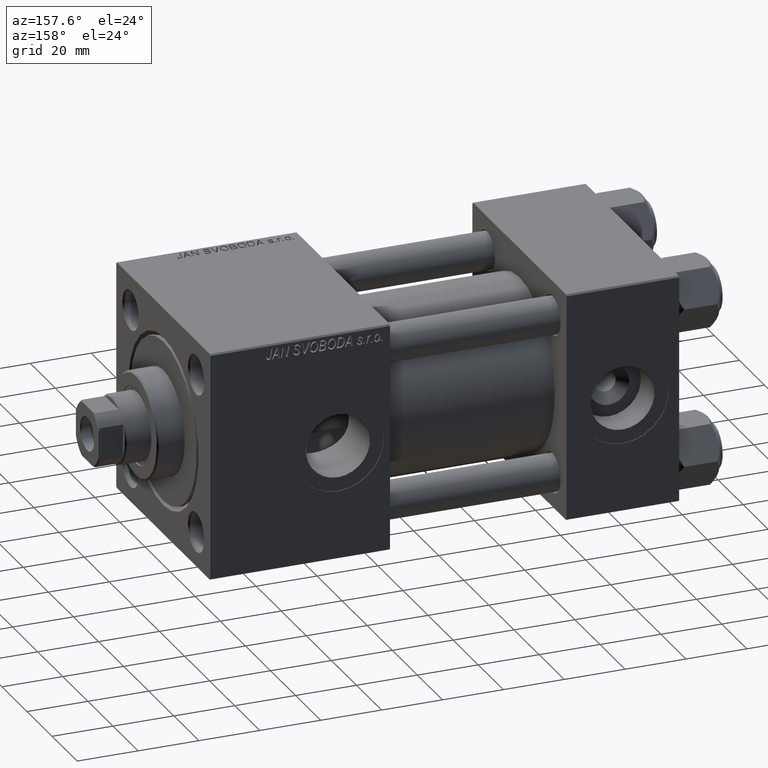
[diagram: clean part render]
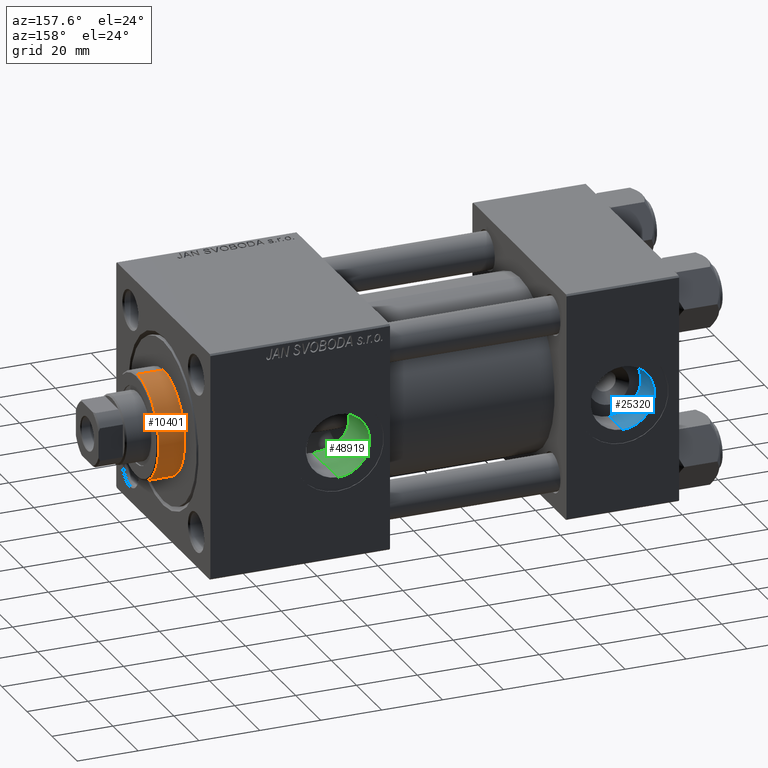
[diagram: same view with three faces highlighted in distinct colors, each labeled with its STEP entity id]
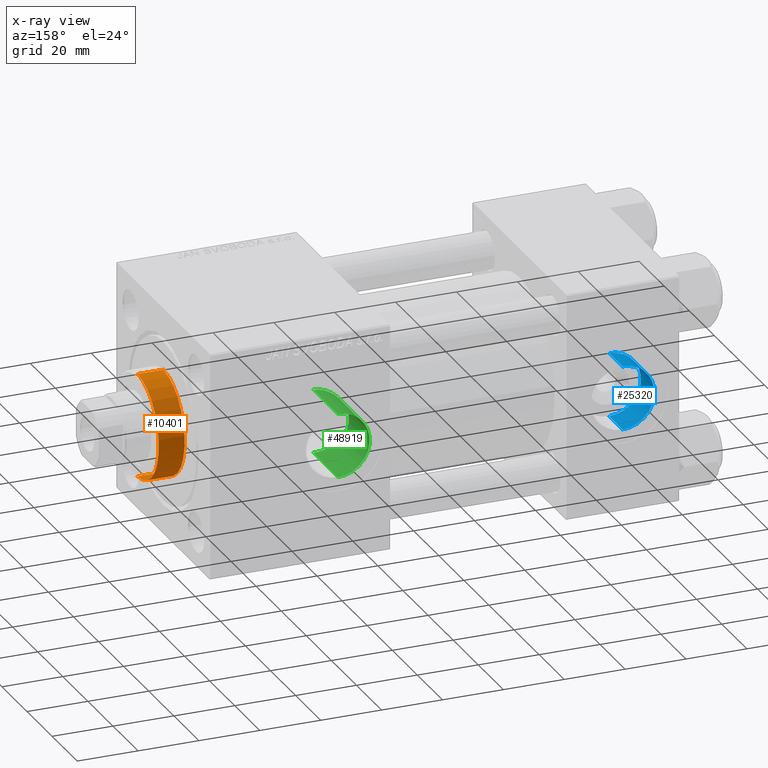
[diagram: x-ray of the same camera — body ghosted, the three highlighted faces saturated]
A machine part, auxiliary view with three faces highlighted in distinct colors.
The next image is the same camera in x-ray (body ghosted, the three faces saturated) — at least one of them is partly hidden behind the body in this view.
Their STEP definitions:

[orange] entity #10401 — the highlighted cylindrical surface (partial cylindrical patch) has radius 17 mm, axis along (-1, -0, 0).
#575 = VERTEX_POINT ( 'NONE', #48527 ) ;
#1609 = LINE ( 'NONE', #20638, #12077 ) ;
#1799 = EDGE_CURVE ( 'NONE', #6918, #575, #19057, .T. ) ;
#1956 = CARTESIAN_POINT ( 'NONE',  ( 0.000000000000000000, 0.000000000000000000, 37.69999999999999574 ) ) ;
#2347 = EDGE_CURVE ( 'NONE', #575, #44585, #41807, .T. ) ;
#4765 = CARTESIAN_POINT ( 'NONE',  ( -17.00000000000000000, 0.000000000000000000, 28.69999999999999929 ) ) ;
#5971 = ORIENTED_EDGE ( 'NONE', *, *, #37103, .F. ) ;
#6918 = VERTEX_POINT ( 'NONE', #20318 ) ;
#7558 = DIRECTION ( 'NONE',  ( -0.000000000000000000, -0.000000000000000000, -1.000000000000000000 ) ) ;
#8359 = DIRECTION ( 'NONE',  ( 0.000000000000000000, 0.000000000000000000, -1.000000000000000000 ) ) ;
#9379 = VECTOR ( 'NONE', #11701, 1000.000000000000000 ) ;
#10401 = ADVANCED_FACE ( 'NONE', ( #20737 ), #21481, .T. ) ;
#11474 = EDGE_LOOP ( 'NONE', ( #42091, #16714, #45737, #5971 ) ) ;
#11701 = DIRECTION ( 'NONE',  ( -0.000000000000000000, -0.000000000000000000, -1.000000000000000000 ) ) ;
#12077 = VECTOR ( 'NONE', #7558, 1000.000000000000000 ) ;
#14221 = AXIS2_PLACEMENT_3D ( 'NONE', #41464, #49322, #14558 ) ;
#14558 = DIRECTION ( 'NONE',  ( 1.000000000000000000, 0.000000000000000000, 0.000000000000000000 ) ) ;
#14946 = CARTESIAN_POINT ( 'NONE',  ( -17.00000000000000000, 0.000000000000000000, 37.19999999999999574 ) ) ;
#16714 = ORIENTED_EDGE ( 'NONE', *, *, #1799, .T. ) ;
#16932 = DIRECTION ( 'NONE',  ( -0.000000000000000000, -0.000000000000000000, -1.000000000000000000 ) ) ;
#19057 = LINE ( 'NONE', #38358, #9379 ) ;
#19240 = AXIS2_PLACEMENT_3D ( 'NONE', #1956, #16932, #32413 ) ;
#20318 = CARTESIAN_POINT ( 'NONE',  ( 17.00000000000000000, 2.081899558550500280E-15, 37.19999999999999574 ) ) ;
#20638 = CARTESIAN_POINT ( 'NONE',  ( -17.00000000000000000, 0.000000000000000000, 37.69999999999999574 ) ) ;
#20737 = FACE_OUTER_BOUND ( 'NONE', #11474, .T. ) ;
#21481 = CYLINDRICAL_SURFACE ( 'NONE', #19240, 17.00000000000000000 ) ;
#22392 = AXIS2_PLACEMENT_3D ( 'NONE', #27145, #8359, #34744 ) ;
#26771 = EDGE_CURVE ( 'NONE', #46773, #6918, #28882, .T. ) ;
#27145 = CARTESIAN_POINT ( 'NONE',  ( 0.000000000000000000, 0.000000000000000000, 37.19999999999999574 ) ) ;
#28882 = CIRCLE ( 'NONE', #22392, 17.00000000000000000 ) ;
#32413 = DIRECTION ( 'NONE',  ( -1.000000000000000000, 0.000000000000000000, 0.000000000000000000 ) ) ;
#34744 = DIRECTION ( 'NONE',  ( 1.000000000000000000, 0.000000000000000000, 0.000000000000000000 ) ) ;
#37103 = EDGE_CURVE ( 'NONE', #46773, #44585, #1609, .T. ) ;
#38358 = CARTESIAN_POINT ( 'NONE',  ( 17.00000000000000000, 2.081899558550500280E-15, 37.69999999999999574 ) ) ;
#41464 = CARTESIAN_POINT ( 'NONE',  ( 0.000000000000000000, 0.000000000000000000, 28.69999999999999929 ) ) ;
#41807 = CIRCLE ( 'NONE', #14221, 17.00000000000000000 ) ;
#42091 = ORIENTED_EDGE ( 'NONE', *, *, #26771, .T. ) ;
#44585 = VERTEX_POINT ( 'NONE', #4765 ) ;
#45737 = ORIENTED_EDGE ( 'NONE', *, *, #2347, .T. ) ;
#46773 = VERTEX_POINT ( 'NONE', #14946 ) ;
#48527 = CARTESIAN_POINT ( 'NONE',  ( 17.00000000000000000, 2.081899558550500280E-15, 28.69999999999999929 ) ) ;
#49322 = DIRECTION ( 'NONE',  ( 0.000000000000000000, 0.000000000000000000, 1.000000000000000000 ) ) ;

[blue] entity #25320 — the highlighted cylindrical surface (edge-blend (fillet) strip) has radius 10.48 mm, axis along (0, 1, 0).
#566 = AXIS2_PLACEMENT_3D ( 'NONE', #48845, #1665, #14066 ) ;
#1665 = DIRECTION ( 'NONE',  ( 0.000000000000000000, 1.000000000000000000, 0.000000000000000000 ) ) ;
#2112 = AXIS2_PLACEMENT_3D ( 'NONE', #11124, #41573, #14412 ) ;
#3194 = CARTESIAN_POINT ( 'NONE',  ( 18.50000000000000000, 26.49999999999999289, -10.48000000000000043 ) ) ;
#3507 = CYLINDRICAL_SURFACE ( 'NONE', #2112, 10.48000000000000043 ) ;
#4257 = EDGE_CURVE ( 'NONE', #16538, #23650, #46758, .T. ) ;
#6744 = LINE ( 'NONE', #3194, #9850 ) ;
#7504 = CARTESIAN_POINT ( 'NONE',  ( 18.50000000000000000, 26.49999999999999289, -10.48000000000000043 ) ) ;
#8937 = ORIENTED_EDGE ( 'NONE', *, *, #11860, .T. ) ;
#9850 = VECTOR ( 'NONE', #29585, 1000.000000000000000 ) ;
#10347 = AXIS2_PLACEMENT_3D ( 'NONE', #39062, #11642, #15699 ) ;
#11124 = CARTESIAN_POINT ( 'NONE',  ( 18.50000000000000000, 26.49999999999999289, 0.000000000000000000 ) ) ;
#11642 = DIRECTION ( 'NONE',  ( 0.000000000000000000, 1.000000000000000000, 0.000000000000000000 ) ) ;
#11860 = EDGE_CURVE ( 'NONE', #23373, #34964, #22488, .T. ) ;
#14066 = DIRECTION ( 'NONE',  ( 0.000000000000000000, 0.000000000000000000, 1.000000000000000000 ) ) ;
#14412 = DIRECTION ( 'NONE',  ( 0.000000000000000000, 0.000000000000000000, 1.000000000000000000 ) ) ;
#15699 = DIRECTION ( 'NONE',  ( 0.000000000000000000, 0.000000000000000000, 1.000000000000000000 ) ) ;
#16384 = EDGE_LOOP ( 'NONE', ( #31574, #36525, #8937, #46519 ) ) ;
#16538 = VERTEX_POINT ( 'NONE', #7504 ) ;
#22488 = CIRCLE ( 'NONE', #10347, 10.48000000000000043 ) ;
#22545 = FACE_OUTER_BOUND ( 'NONE', #16384, .T. ) ;
#23373 = VERTEX_POINT ( 'NONE', #36024 ) ;
#23650 = VERTEX_POINT ( 'NONE', #43599 ) ;
#24112 = VECTOR ( 'NONE', #24327, 1000.000000000000000 ) ;
#24327 = DIRECTION ( 'NONE',  ( -0.000000000000000000, 1.000000000000000000, -0.000000000000000000 ) ) ;
#25107 = CARTESIAN_POINT ( 'NONE',  ( 18.50000000000000000, 37.29999999999999005, 10.48000000000000043 ) ) ;
#25320 = ADVANCED_FACE ( 'NONE', ( #22545 ), #3507, .F. ) ;
#28502 = EDGE_CURVE ( 'NONE', #23650, #34964, #33179, .T. ) ;
#29585 = DIRECTION ( 'NONE',  ( -0.000000000000000000, 1.000000000000000000, -0.000000000000000000 ) ) ;
#31574 = ORIENTED_EDGE ( 'NONE', *, *, #4257, .F. ) ;
#33179 = LINE ( 'NONE', #47914, #24112 ) ;
#34964 = VERTEX_POINT ( 'NONE', #25107 ) ;
#36024 = CARTESIAN_POINT ( 'NONE',  ( 18.50000000000000000, 37.29999999999999005, -10.48000000000000043 ) ) ;
#36525 = ORIENTED_EDGE ( 'NONE', *, *, #43328, .T. ) ;
#39062 = CARTESIAN_POINT ( 'NONE',  ( 18.50000000000000000, 37.29999999999999005, 0.000000000000000000 ) ) ;
#41573 = DIRECTION ( 'NONE',  ( -0.000000000000000000, 1.000000000000000000, -0.000000000000000000 ) ) ;
#43328 = EDGE_CURVE ( 'NONE', #16538, #23373, #6744, .T. ) ;
#43599 = CARTESIAN_POINT ( 'NONE',  ( 18.50000000000000000, 26.49999999999999289, 10.48000000000000043 ) ) ;
#46519 = ORIENTED_EDGE ( 'NONE', *, *, #28502, .F. ) ;
#46758 = CIRCLE ( 'NONE', #566, 10.48000000000000043 ) ;
#47914 = CARTESIAN_POINT ( 'NONE',  ( 18.50000000000000000, 26.49999999999999289, 10.48000000000000043 ) ) ;
#48845 = CARTESIAN_POINT ( 'NONE',  ( 18.50000000000000000, 26.49999999999999289, 0.000000000000000000 ) ) ;

[green] entity #48919 — the highlighted cylindrical surface (edge-blend (fillet) strip) has radius 10.48 mm, axis along (0, 1, 0).
#936 = CIRCLE ( 'NONE', #9839, 10.48000000000000043 ) ;
#1457 = CARTESIAN_POINT ( 'NONE',  ( 109.2403629802350196, 17.82079794539907525, -10.13382489948089038 ) ) ;
#1532 = VECTOR ( 'NONE', #39366, 1000.000000000000000 ) ;
#2290 = EDGE_CURVE ( 'NONE', #14459, #3790, #15254, .T. ) ;
#2750 = CYLINDRICAL_SURFACE ( 'NONE', #25339, 10.48000000000000043 ) ;
#2880 = CARTESIAN_POINT ( 'NONE',  ( 110.2468534338128734, 17.70251751164530418, 10.33814712602720576 ) ) ;
#3004 = CARTESIAN_POINT ( 'NONE',  ( 112.0000000000000000, -29.64191626734007912, -10.48000000000000043 ) ) ;
#3401 = CARTESIAN_POINT ( 'NONE',  ( 103.6965545704568967, 19.47635848475286835, 6.402950132980990361 ) ) ;
#3765 = DIRECTION ( 'NONE',  ( -0.000000000000000000, 1.000000000000000000, -0.000000000000000000 ) ) ;
#3790 = VERTEX_POINT ( 'NONE', #32432 ) ;
#5000 = EDGE_LOOP ( 'NONE', ( #31297, #18988, #27460, #7373 ) ) ;
#5264 = CARTESIAN_POINT ( 'NONE',  ( 107.3100863107396066, 18.22170801969769727, -9.397387316683852632 ) ) ;
#6454 = CARTESIAN_POINT ( 'NONE',  ( 110.5956288187404510, 17.67116055936238439, 10.39142786820305631 ) ) ;
#6698 = CARTESIAN_POINT ( 'NONE',  ( 106.7106607938319485, 18.38789166138563047, 9.072389502815479290 ) ) ;
#6949 = CARTESIAN_POINT ( 'NONE',  ( 101.5378897624987928, 20.49083823246028047, -0.7039849273505848215 ) ) ;
#7209 = CARTESIAN_POINT ( 'NONE',  ( 105.5912950391798688, 18.74056962282067929, 8.319486838373059356 ) ) ;
#7373 = ORIENTED_EDGE ( 'NONE', *, *, #31822, .F. ) ;
#7470 = CARTESIAN_POINT ( 'NONE',  ( 102.9403831427403446, 19.81099715267854577, -5.279232700618297081 ) ) ;
#8537 = VECTOR ( 'NONE', #3765, 1000.000000000000000 ) ;
#9076 = CARTESIAN_POINT ( 'NONE',  ( 110.5978533062423708, 17.66157575871127605, -10.40884182910763478 ) ) ;
#9839 = AXIS2_PLACEMENT_3D ( 'NONE', #36537, #44412, #17242 ) ;
#10249 = CARTESIAN_POINT ( 'NONE',  ( 101.8644662194579240, 20.32571077946739280, 2.754192007661706576 ) ) ;
#10623 = FACE_OUTER_BOUND ( 'NONE', #5000, .T. ) ;
#10757 = CARTESIAN_POINT ( 'NONE',  ( 102.6164643899289786, 19.96120364297752658, 4.679357298666303677 ) ) ;
#11135 = DIRECTION ( 'NONE',  ( 0.000000000000000000, 0.000000000000000000, 1.000000000000000000 ) ) ;
#14459 = VERTEX_POINT ( 'NONE', #47786 ) ;
#14813 = CARTESIAN_POINT ( 'NONE',  ( 102.6159976981734445, 19.96142404198110043, -4.678403179177069049 ) ) ;
#15065 = CARTESIAN_POINT ( 'NONE',  ( 102.4690137959665606, 20.03112378046086306, -4.371135786211568508 ) ) ;
#15254 = B_SPLINE_CURVE_WITH_KNOTS ( 'NONE', 3,
 ( #28362, #43840, #9076, #1457, #40028, #5264, #49829, #48822, #45531, #18104, #22171, #21922, #7470, #14813, #15065, #41218, #37657, #25971, #26745, #6949, #26222, #18621, #41711, #42230, #33581, #10249, #30293, #34093, #10757, #22688, #25723, #49060, #3401, #34348, #30552, #22943, #7209, #6698, #38426, #46039, #37403, #2880, #6454, #38173, #18364, #17859 ),
 .UNSPECIFIED., .F., .F.,
 ( 4, 2, 2, 2, 2, 2, 2, 2, 2, 2, 2, 2, 2, 2, 2, 2, 2, 2, 2, 2, 2, 2, 4 ),
 ( 0.03336158123516717866, 0.03544265961690356431, 0.03752373799863994996, 0.03960481638037632868, 0.04168589476211271433, 0.04376697314384909998, 0.04480751233471730322, 0.04584805152558550645, 0.04792912990732189904, 0.04896966909819009534, 0.05001020828905829163, 0.05105074747992649487, 0.05209128667079469810, 0.05417236505253109069, 0.05521290424339927311, 0.05625344343426746246, 0.05729398262513565182, 0.05833452181600384118, 0.06041560019774022683, 0.06249667857947660554, 0.06457775696121298425, 0.06561829615208117361, 0.06665883534294933521 ),
 .UNSPECIFIED. ) ;
#17242 = DIRECTION ( 'NONE',  ( 0.000000000000000000, 0.000000000000000000, 1.000000000000000000 ) ) ;
#17859 = CARTESIAN_POINT ( 'NONE',  ( 112.0000000000000142, 17.61872867150180966, 10.48000000000000043 ) ) ;
#18104 = CARTESIAN_POINT ( 'NONE',  ( 104.1154966428195650, 19.29748815725751854, -6.936615267079071501 ) ) ;
#18364 = CARTESIAN_POINT ( 'NONE',  ( 111.6475434304268646, 17.61872867150182742, 10.48000000000000043 ) ) ;
#18621 = CARTESIAN_POINT ( 'NONE',  ( 101.5196685255906885, 20.50016945612666319, 0.3370597319416051008 ) ) ;
#18988 = ORIENTED_EDGE ( 'NONE', *, *, #19227, .T. ) ;
#19227 = EDGE_CURVE ( 'NONE', #14459, #44180, #49180, .T. ) ;
#21797 = DIRECTION ( 'NONE',  ( -0.000000000000000000, 1.000000000000000000, -0.000000000000000000 ) ) ;
#21922 = CARTESIAN_POINT ( 'NONE',  ( 103.1187049359718202, 19.72987673710759537, -5.573899943951358793 ) ) ;
#22171 = CARTESIAN_POINT ( 'NONE',  ( 103.6880334401415666, 19.47800103400543037, -6.418961154723162643 ) ) ;
#22295 = CARTESIAN_POINT ( 'NONE',  ( 112.0000000000000000, -29.64191626734007912, 0.000000000000000000 ) ) ;
#22688 = CARTESIAN_POINT ( 'NONE',  ( 102.9411611326308389, 19.81064037218146368, 5.280583646633655981 ) ) ;
#22943 = CARTESIAN_POINT ( 'NONE',  ( 105.0734470520781372, 18.92624177978035149, 7.893624330866854777 ) ) ;
#25339 = AXIS2_PLACEMENT_3D ( 'NONE', #22295, #21797, #11135 ) ;
#25723 = CARTESIAN_POINT ( 'NONE',  ( 103.1169022577859806, 19.73069551859685333, 5.570939784232588288 ) ) ;
#25971 = CARTESIAN_POINT ( 'NONE',  ( 101.6599816702482002, 20.42870407917522257, -1.742736129997704886 ) ) ;
#26222 = CARTESIAN_POINT ( 'NONE',  ( 101.5203413114016655, 20.49982551501179628, -0.3573665441489103922 ) ) ;
#26745 = CARTESIAN_POINT ( 'NONE',  ( 101.6075773779828779, 20.45534523790399462, -1.396029170523088059 ) ) ;
#27200 = CARTESIAN_POINT ( 'NONE',  ( 112.0000000000000000, -29.64191626734007912, 10.48000000000000043 ) ) ;
#27460 = ORIENTED_EDGE ( 'NONE', *, *, #45797, .T. ) ;
#28362 = CARTESIAN_POINT ( 'NONE',  ( 112.0000000000000000, 17.61872867150181321, -10.48000000000000043 ) ) ;
#30293 = CARTESIAN_POINT ( 'NONE',  ( 102.0672445904021544, 20.22435857088710165, 3.412665908255118286 ) ) ;
#30552 = CARTESIAN_POINT ( 'NONE',  ( 104.3565930781032733, 19.20397725512305342, 7.177934301078940038 ) ) ;
#31297 = ORIENTED_EDGE ( 'NONE', *, *, #2290, .F. ) ;
#31822 = EDGE_CURVE ( 'NONE', #3790, #33213, #38619, .T. ) ;
#32432 = CARTESIAN_POINT ( 'NONE',  ( 112.0000000000000142, 17.61872867150180966, 10.48000000000000043 ) ) ;
#33213 = VERTEX_POINT ( 'NONE', #41546 ) ;
#33581 = CARTESIAN_POINT ( 'NONE',  ( 101.6580920811483111, 20.42966293947405987, 1.731009894797393089 ) ) ;
#34093 = CARTESIAN_POINT ( 'NONE',  ( 102.4668488264915567, 20.03214750572677261, 4.366727419945055644 ) ) ;
#34348 = CARTESIAN_POINT ( 'NONE',  ( 104.1270451318824257, 19.29675496503547194, 6.925428365915356821 ) ) ;
#36537 = CARTESIAN_POINT ( 'NONE',  ( 112.0000000000000000, 37.30000000000000426, 0.000000000000000000 ) ) ;
#37403 = CARTESIAN_POINT ( 'NONE',  ( 109.2268287562162783, 17.82285308859523454, 10.13022984834618434 ) ) ;
#37657 = CARTESIAN_POINT ( 'NONE',  ( 101.8691597652190524, 20.32336116498156997, -2.772599727864801800 ) ) ;
#38173 = CARTESIAN_POINT ( 'NONE',  ( 111.2952851733683275, 17.62935847065589812, 10.46218947295187185 ) ) ;
#38426 = CARTESIAN_POINT ( 'NONE',  ( 107.3183937461305106, 18.21983983363420379, 9.400884600174675754 ) ) ;
#38619 = LINE ( 'NONE', #27200, #1532 ) ;
#39366 = DIRECTION ( 'NONE',  ( -0.000000000000000000, 1.000000000000000000, -0.000000000000000000 ) ) ;
#39836 = CARTESIAN_POINT ( 'NONE',  ( 112.0000000000000000, 37.30000000000000426, -10.48000000000000043 ) ) ;
#40028 = CARTESIAN_POINT ( 'NONE',  ( 108.5822330272395391, 17.93645683579941164, -9.931014435212070168 ) ) ;
#41218 = CARTESIAN_POINT ( 'NONE',  ( 102.0732622662075784, 20.22142946436213862, -3.428524798860914213 ) ) ;
#41546 = CARTESIAN_POINT ( 'NONE',  ( 112.0000000000000000, 37.30000000000000426, 10.48000000000000043 ) ) ;
#41711 = CARTESIAN_POINT ( 'NONE',  ( 101.5365425422142494, 20.49152652918501261, 0.6848675738318643624 ) ) ;
#42230 = CARTESIAN_POINT ( 'NONE',  ( 101.6055836921181736, 20.45635861796915478, 1.381700106035497422 ) ) ;
#43840 = CARTESIAN_POINT ( 'NONE',  ( 111.3055401115030350, 17.61872867150182032, -10.48000000000000043 ) ) ;
#44180 = VERTEX_POINT ( 'NONE', #39836 ) ;
#44412 = DIRECTION ( 'NONE',  ( 0.000000000000000000, 1.000000000000000000, 0.000000000000000000 ) ) ;
#45531 = CARTESIAN_POINT ( 'NONE',  ( 105.0660515160926849, 18.92900677710231250, -7.886848735419206946 ) ) ;
#45797 = EDGE_CURVE ( 'NONE', #44180, #33213, #936, .T. ) ;
#46039 = CARTESIAN_POINT ( 'NONE',  ( 108.5742545404236523, 17.93825126373310752, 9.927655132419886286 ) ) ;
#47786 = CARTESIAN_POINT ( 'NONE',  ( 112.0000000000000000, 17.61872867150181321, -10.48000000000000043 ) ) ;
#48822 = CARTESIAN_POINT ( 'NONE',  ( 105.5937765529685208, 18.73970531679492524, -8.321439665826497745 ) ) ;
#48919 = ADVANCED_FACE ( 'NONE', ( #10623 ), #2750, .F. ) ;
#49060 = CARTESIAN_POINT ( 'NONE',  ( 103.4945987102145324, 19.56355722383162643, 6.132123977627048639 ) ) ;
#49180 = LINE ( 'NONE', #3004, #8537 ) ;
#49829 = CARTESIAN_POINT ( 'NONE',  ( 106.7142621541631655, 18.38683988840735850, -9.074526565632755393 ) ) ;